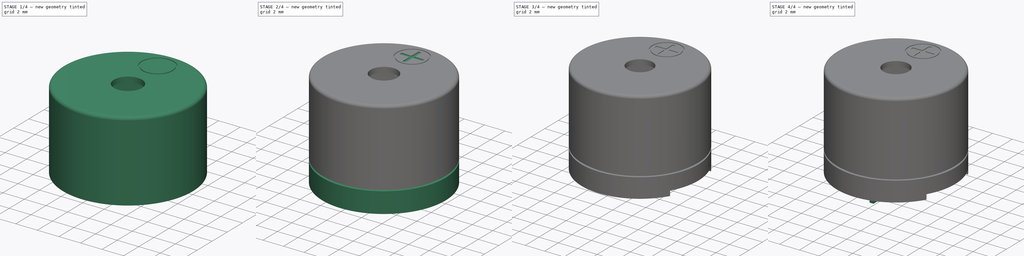
[diagram: build sequence overview — one tinted view per stage of 4, left to right]
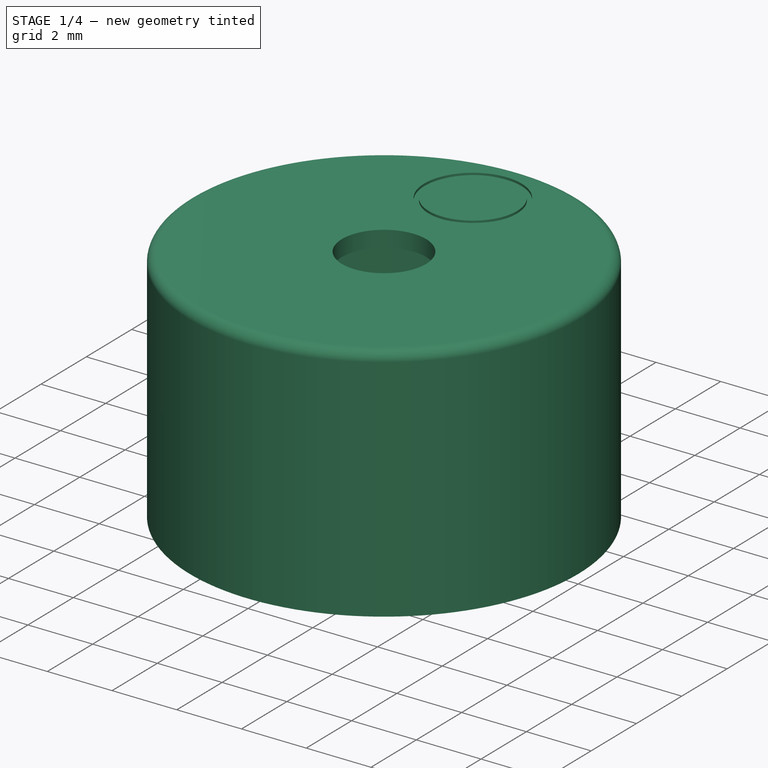
[diagram: stage 1 of 4 — iso view after this stage's code; geometry added in this stage tinted green]
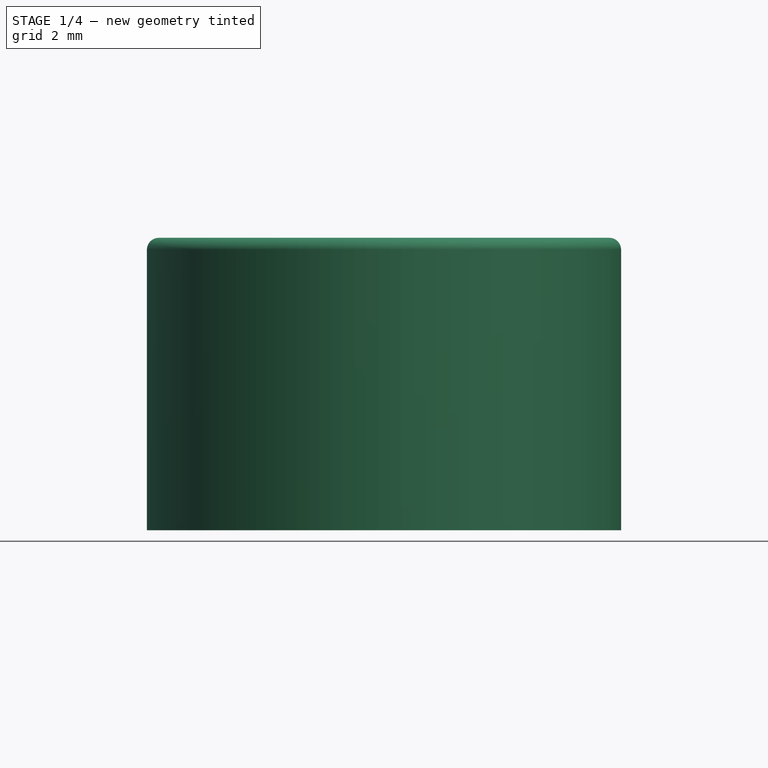
[diagram: stage 1 of 4 — front view after this stage's code; geometry added in this stage tinted green]
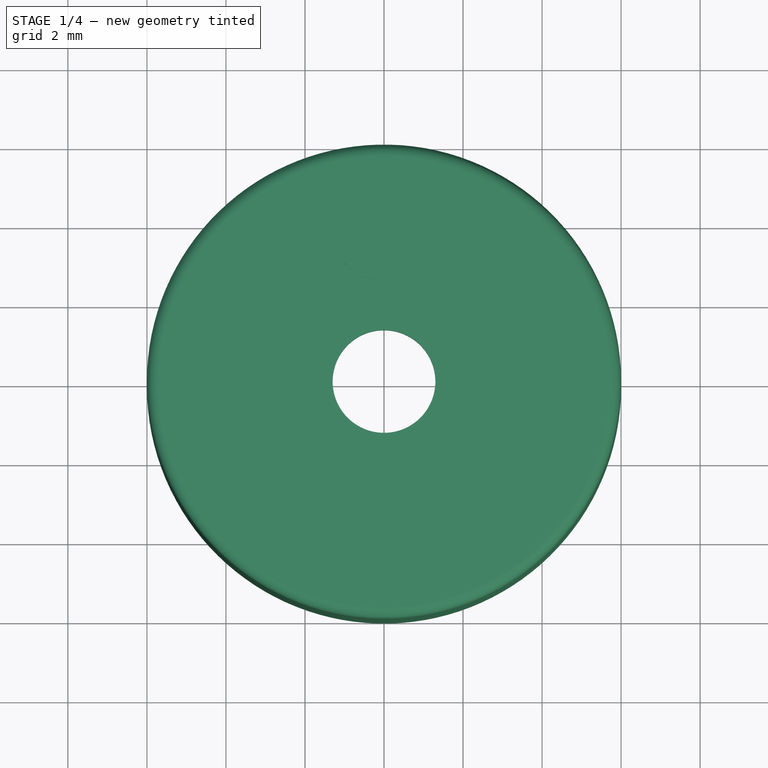
[diagram: stage 1 of 4 — top view after this stage's code; geometry added in this stage tinted green]
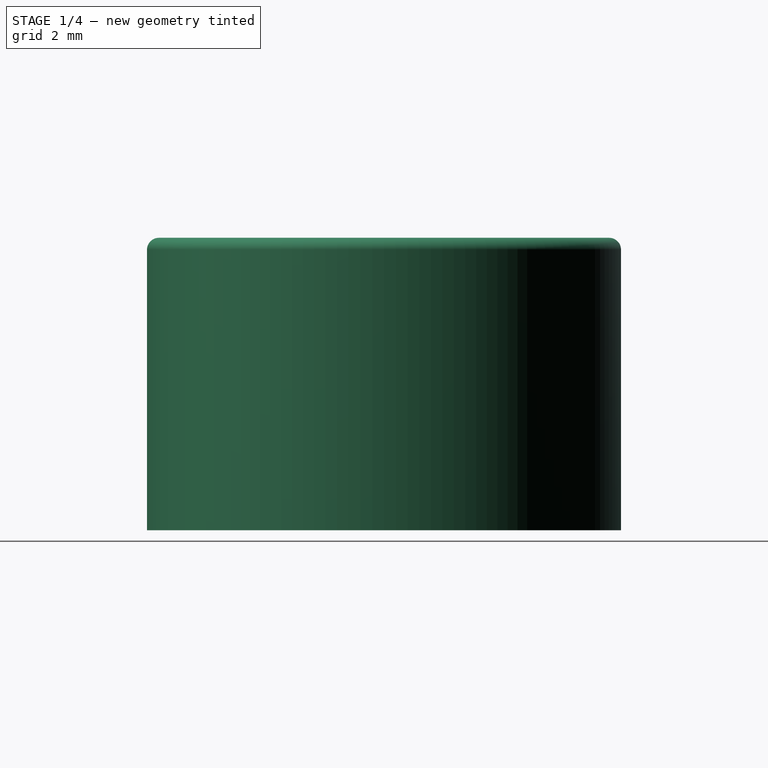
[diagram: stage 1 of 4 — right view after this stage's code; geometry added in this stage tinted green]
FCSTD DOCUMENT  (FreeCAD 0.14R3692 (Git))
Label: Buzzer
License: CC-BY 3.0
LicenseURL: http://creativecommons.org/licenses/by/3.0/
objects: Sketcher::SketchObject×4, Part::Box×3, Part::Cut×3, PartDesign::Revolution×2, Part::MultiFuse×2, PartDesign::Pad×2, Part::Fillet×1, Part::Cylinder×1
note: 22 computed .brp shape members not serialized (recipe doc carries the construction recipe); baked Part::Feature solids carry a one-line shape summary decoded from their .brp

FEATURE [Sketcher::SketchObject] Sketch001
  Placement = pos=(0,0,0) rot=(1,0,0;1.5708rad)
  sketch-geometry (8):
    g0: LineSegment StartX=1.3 StartY=9.57124 StartZ=0 EndX=6 EndY=9.57124 EndZ=0
    g1: LineSegment StartX=6 StartY=9.57124 StartZ=0 EndX=6 EndY=2.17124 EndZ=0
    g2: LineSegment StartX=6 StartY=2.17124 StartZ=0 EndX=5.75 EndY=2.17124 EndZ=0
    g3: LineSegment StartX=5.75 StartY=2.17124 StartZ=0 EndX=5.75 EndY=2.57124 EndZ=0
    g4: LineSegment StartX=5.75 StartY=2.57124 StartZ=0 EndX=5.5 EndY=2.57124 EndZ=0
    g5: LineSegment StartX=5.5 StartY=2.57124 StartZ=0 EndX=5.5 EndY=9.07124 EndZ=0
    g6: LineSegment StartX=5.5 StartY=9.07124 StartZ=0 EndX=1.3 EndY=9.07124 EndZ=0
    g7: LineSegment StartX=1.3 StartY=9.07124 StartZ=0 EndX=1.3 EndY=9.57124 EndZ=0
  constraints (24):
    c: Horizontal(g0)
    c: Coincident(g0,g1)
    c: Vertical(g1)
    c: Coincident(g1,g2)
    c: Coincident(g2,g3)
    c: Vertical(g3)
    c: Coincident(g3,g4)
    c: Horizontal(g4)
    c: Coincident(g4,g5)
    c: Vertical(g5)
    c: Coincident(g5,g6)
    c: Horizontal(g6)
    c: Coincident(g6,g7)
    c: Coincident(g7,g0)
    c: DistanceY(g1) = -7.4
    c: Horizontal(g2)
    c: Vertical(g7)
    c: DistanceY(g3) = 0.4
    c: DistanceY(g7) = 0.5
    c: DistanceX(g0,g5) = -0.5
    c: DistanceX(g2,g1) = 0.25
    c: DistanceX(g-1,g1) = 6
    c: DistanceX(g-1,g0) = 1.3
    c: DistanceY(g-1,g1) = 2.17124
FEATURE [PartDesign::Revolution] Revolution001
  Angle = 360
  Axis = (0,0,1)
  Base = (0,0,0)
  Placement = pos=(0,0,0) rot=(1,0,0;1.5708rad)
  ReferenceAxis = -> Sketch001 [V_Axis]
  Reversed = true
  Sketch = -> Sketch001
FEATURE [Part::Fillet] Fillet  label="AroSuperior_b"
  Base = -> Revolution001
  Edges = 1 edges r=0.3: [Edge2]
FEATURE [Sketcher::SketchObject] Sketch002
  Placement = pos=(0,0,9.5) rot=(0,0,1;0rad)
  sketch-geometry (2):
    g0: Circle CenterX=0 CenterY=3.92336 CenterZ=0 NormalX=0 NormalY=0 NormalZ=1 Radius=1.5
    g1: Circle CenterX=0 CenterY=3.92336 CenterZ=0 NormalX=0 NormalY=0 NormalZ=1 Radius=1.36584
  constraints (3):
    c: Radius(g0) = 1.5
    c: PointOnObject(g0,g-2)
    c: Coincident(g1,g0)
FEATURE [PartDesign::Pad] Pad
  Length = 5
  Length2 = 100
  Placement = pos=(0,0,9.5) rot=(0,0,1;0rad)
  Sketch = -> Sketch002
  Type = 0
FEATURE [Part::Cut] Cut001
  Base = -> Fillet
  Tool = -> Pad
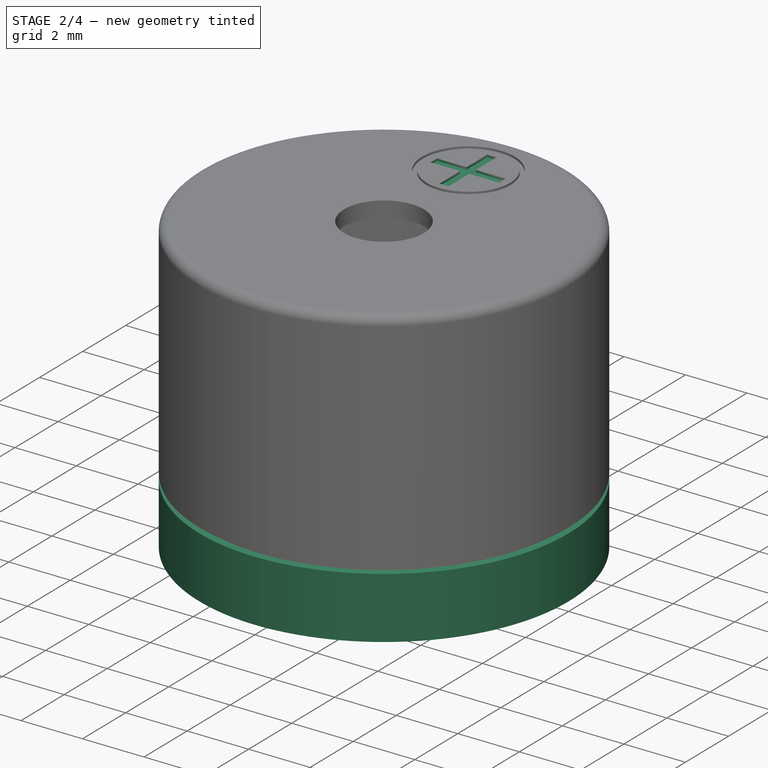
[diagram: stage 2 of 4 — iso view after this stage's code; geometry added in this stage tinted green]
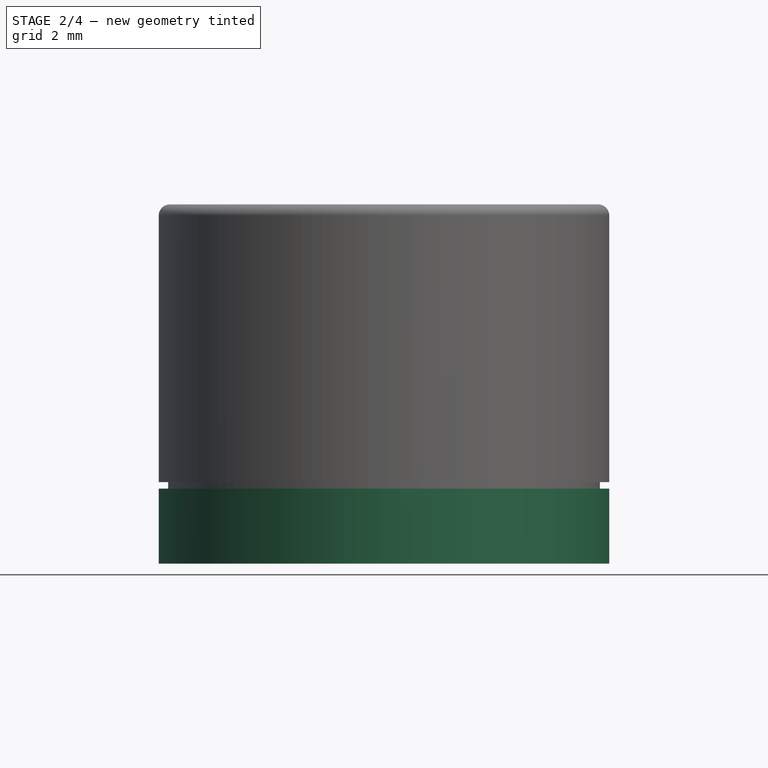
[diagram: stage 2 of 4 — front view after this stage's code; geometry added in this stage tinted green]
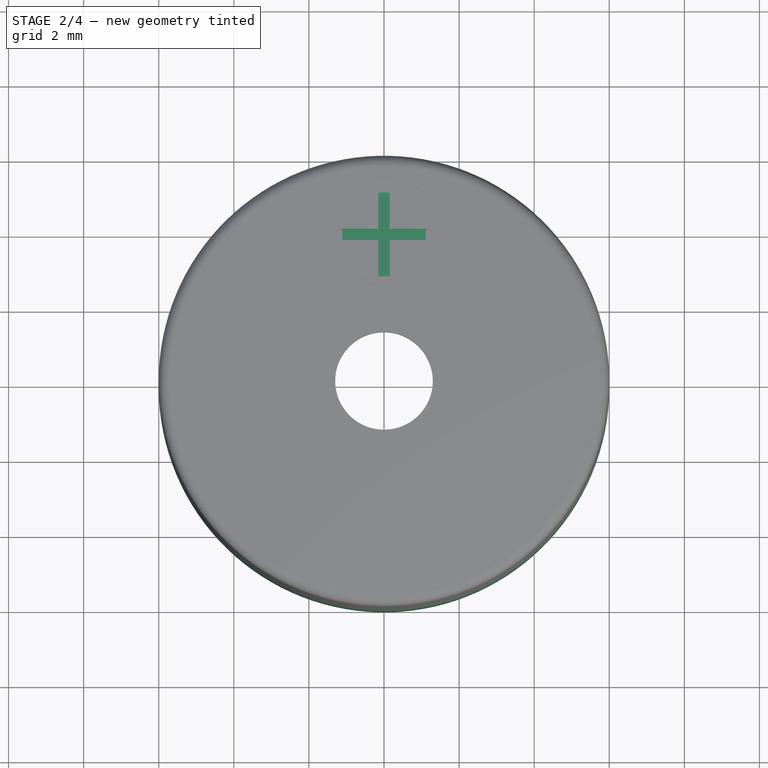
[diagram: stage 2 of 4 — top view after this stage's code; geometry added in this stage tinted green]
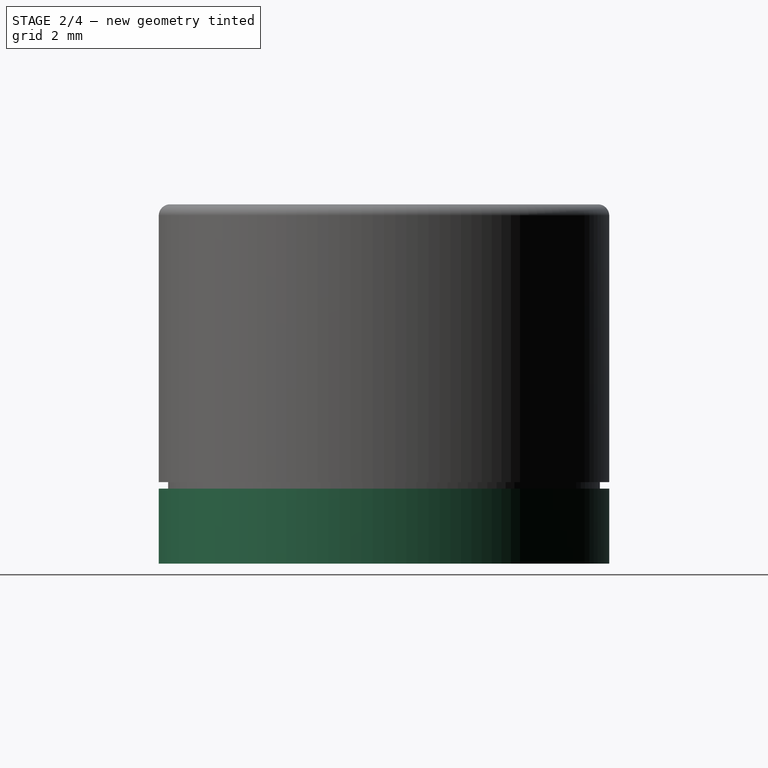
[diagram: stage 2 of 4 — right view after this stage's code; geometry added in this stage tinted green]
FEATURE [Sketcher::SketchObject] Sketch
  Placement = pos=(0,0,0) rot=(1,0,0;1.5708rad)
  sketch-geometry (6):
    g0: LineSegment StartX=5.5 StartY=2.5 StartZ=0 EndX=5.5 EndY=0 EndZ=0
    g1: LineSegment StartX=5.5 StartY=0 StartZ=0 EndX=6 EndY=0 EndZ=0
    g2: LineSegment StartX=6 StartY=0 StartZ=0 EndX=6 EndY=2 EndZ=0
    g3: LineSegment StartX=6 StartY=2 StartZ=0 EndX=5.75 EndY=2 EndZ=0
    g4: LineSegment StartX=5.75 StartY=2 StartZ=0 EndX=5.75 EndY=2.5 EndZ=0
    g5: LineSegment StartX=5.75 StartY=2.5 StartZ=0 EndX=5.5 EndY=2.5 EndZ=0
  constraints (18):
    c: PointOnObject(g0,g-1)
    c: Vertical(g0)
    c: Coincident(g0,g1)
    c: PointOnObject(g1,g-1)
    c: Coincident(g1,g2)
    c: Vertical(g2)
    c: Coincident(g2,g3)
    c: Coincident(g3,g4)
    c: Vertical(g4)
    c: Coincident(g4,g5)
    c: Coincident(g5,g0)
    c: Horizontal(g5)
    c: Horizontal(g3)
    c: DistanceX(g1) = 0.5
    c: DistanceY(g0,g1) = -2.5
    c: DistanceY(g2,g1) = -2
    c: DistanceX(g5) = -0.25
    c: DistanceX(g-1,g0) = 5.5
FEATURE [PartDesign::Revolution] Revolution
  Angle = 360
  Axis = (0,0,1)
  Base = (0,0,0)
  Placement = pos=(0,0,0) rot=(1,0,0;1.5708rad)
  ReferenceAxis = -> Sketch [V_Axis]
  Reversed = true
  Sketch = -> Sketch
FEATURE [Sketcher::SketchObject] Sketch003
  Placement = pos=(0,0,9.5) rot=(0,0,1;0rad)
  sketch-geometry (12):
    g0: LineSegment StartX=-0.15 StartY=5.01496 StartZ=0 EndX=0.15 EndY=5.01496 EndZ=0
    g1: LineSegment StartX=0.15 StartY=5.01496 StartZ=0 EndX=0.15 EndY=4.05141 EndZ=0
    g2: LineSegment StartX=0.15 StartY=4.05141 StartZ=0 EndX=1.11355 EndY=4.05141 EndZ=0
    g3: LineSegment StartX=1.11355 StartY=4.05141 StartZ=0 EndX=1.11355 EndY=3.75141 EndZ=0
    g4: LineSegment StartX=1.11355 StartY=3.75141 StartZ=0 EndX=0.15 EndY=3.75141 EndZ=0
    g5: LineSegment StartX=0.15 StartY=3.75141 StartZ=0 EndX=0.15 EndY=2.78787 EndZ=0
    g6: LineSegment StartX=0.15 StartY=2.78787 StartZ=0 EndX=-0.15 EndY=2.78787 EndZ=0
    g7: LineSegment StartX=-0.15 StartY=2.78787 StartZ=0 EndX=-0.15 EndY=3.75141 EndZ=0
    g8: LineSegment StartX=-0.15 StartY=3.75141 StartZ=0 EndX=-1.11355 EndY=3.75141 EndZ=0
    g9: LineSegment StartX=-1.11355 StartY=3.75141 StartZ=0 EndX=-1.11355 EndY=4.05141 EndZ=0
    g10: LineSegment StartX=-1.11355 StartY=4.05141 StartZ=0 EndX=-0.15 EndY=4.05141 EndZ=0
    g11: LineSegment StartX=-0.15 StartY=4.05141 StartZ=0 EndX=-0.15 EndY=5.01496 EndZ=0
  constraints (36):
    c: Coincident(g0,g1)
    c: Coincident(g1,g2)
    c: Coincident(g2,g3)
    c: Coincident(g3,g4)
    c: Coincident(g4,g5)
    c: Coincident(g5,g6)
    c: Coincident(g6,g7)
    c: Coincident(g7,g8)
    c: Coincident(g8,g9)
    c: Coincident(g9,g10)
    c: Coincident(g10,g11)
    c: Coincident(g11,g0)
    c: Vertical(g11)
    c: Vertical(g1)
    c: Vertical(g7)
    c: Vertical(g5)
    c: Vertical(g9)
    c: Vertical(g3)
    c: Horizontal(g0)
    c: Horizontal(g10)
    c: Horizontal(g2)
    c: Horizontal(g8)
    c: Horizontal(g4)
    c: Horizontal(g6)
    c: Equal(g11,g1)
    c: Equal(g1,g2)
    c: Equal(g2,g4)
    c: Equal(g4,g5)
    c: Equal(g5,g7)
    c: Equal(g7,g8)
    c: Equal(g8,g10)
    c: Equal(g0,g3)
    c: Equal(g3,g6)
    c: Equal(g6,g9)
    c: DistanceX(g0) = 0.3
    c: Symmetric(g1,g10,g-2)
FEATURE [PartDesign::Pad] Pad001
  Length = 5
  Length2 = 100
  Placement = pos=(0,0,9.5) rot=(0,0,1;0rad)
  Sketch = -> Sketch003
  Type = 0
FEATURE [Part::Cut] Cut002  label="Tapa"
  Base = -> Cut001
  Tool = -> Pad001
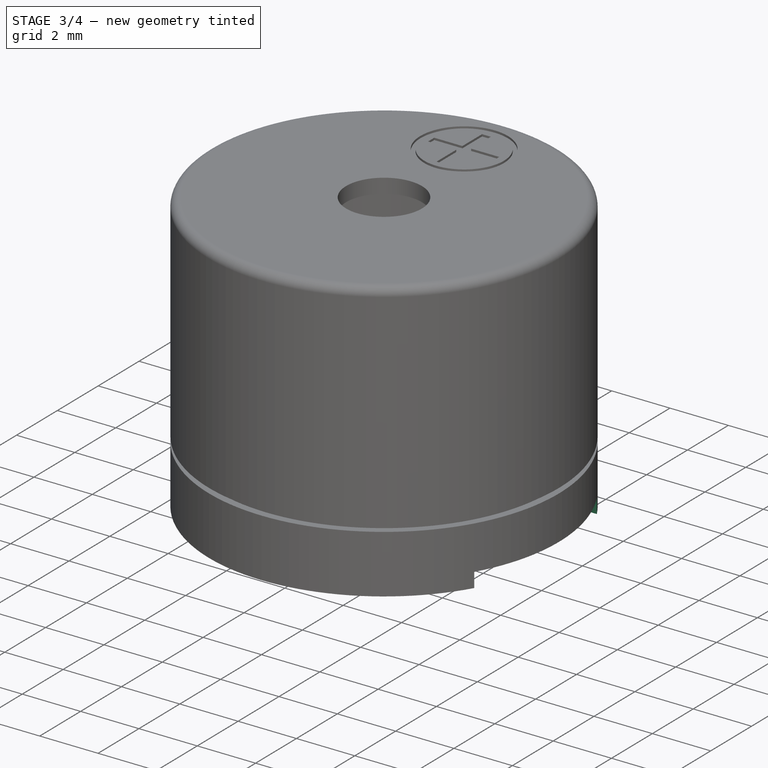
[diagram: stage 3 of 4 — iso view after this stage's code; geometry added in this stage tinted green]
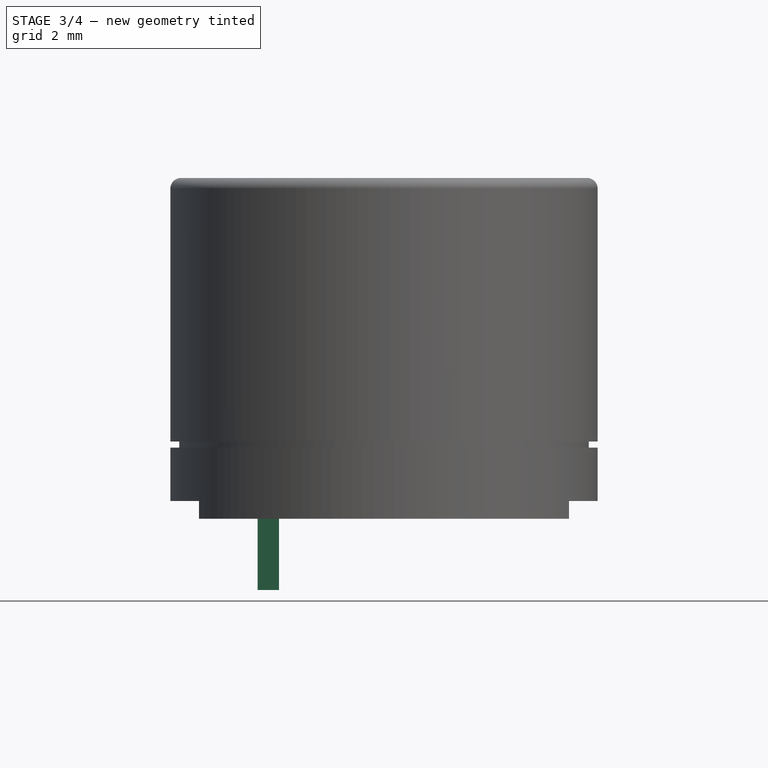
[diagram: stage 3 of 4 — front view after this stage's code; geometry added in this stage tinted green]
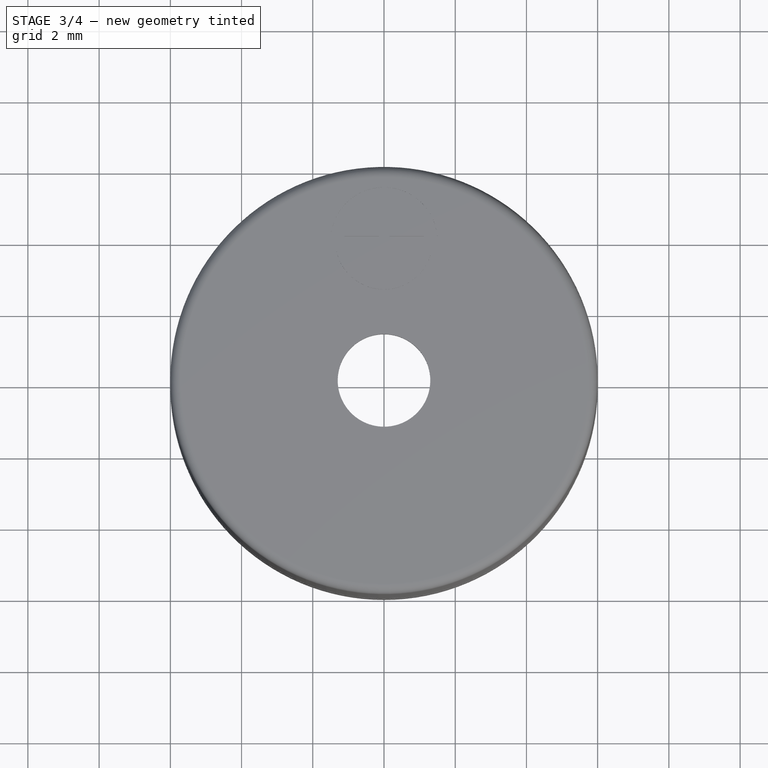
[diagram: stage 3 of 4 — top view after this stage's code; geometry added in this stage tinted green]
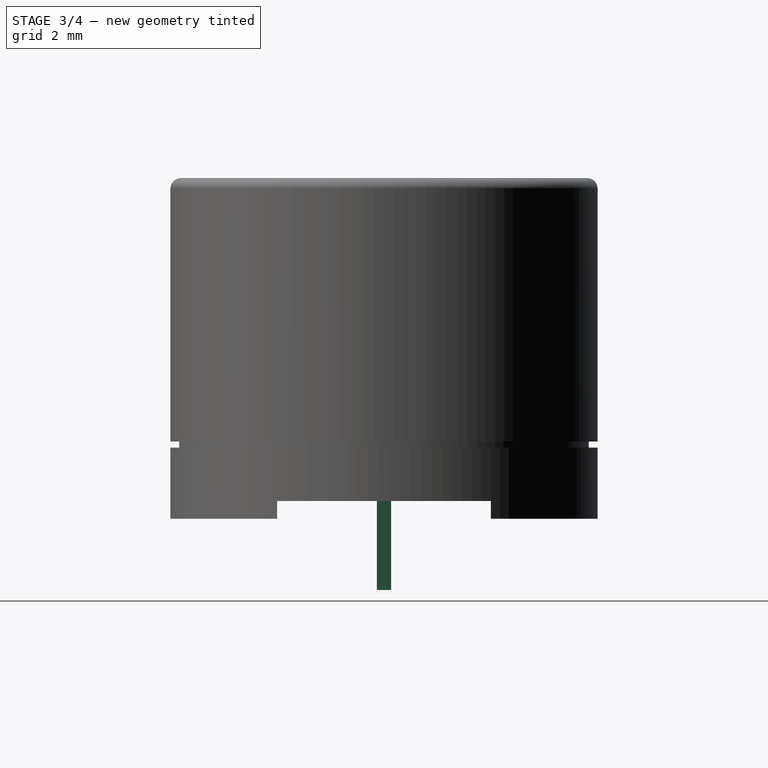
[diagram: stage 3 of 4 — right view after this stage's code; geometry added in this stage tinted green]
FEATURE [Part::Box] Box  label="Cubo"
  Height = 0.5
  Length = 6
  Placement = pos=(-3,-7,0) rot=(0,0,1;0rad)
  Width = 15
FEATURE [Part::Box] Box002  label="Cubo002"
  Height = 2.5
  Length = 0.6
  Placement = pos=(-3.55,-0.2,-2) rot=(0,0,1;0rad)
  Width = 0.4
FEATURE [Part::Cut] Cut  label="AroInferior"
  Base = -> Revolution
  Placement = pos=(0,0,0) rot=(0,0,1;1.5708rad)
  Tool = -> Box
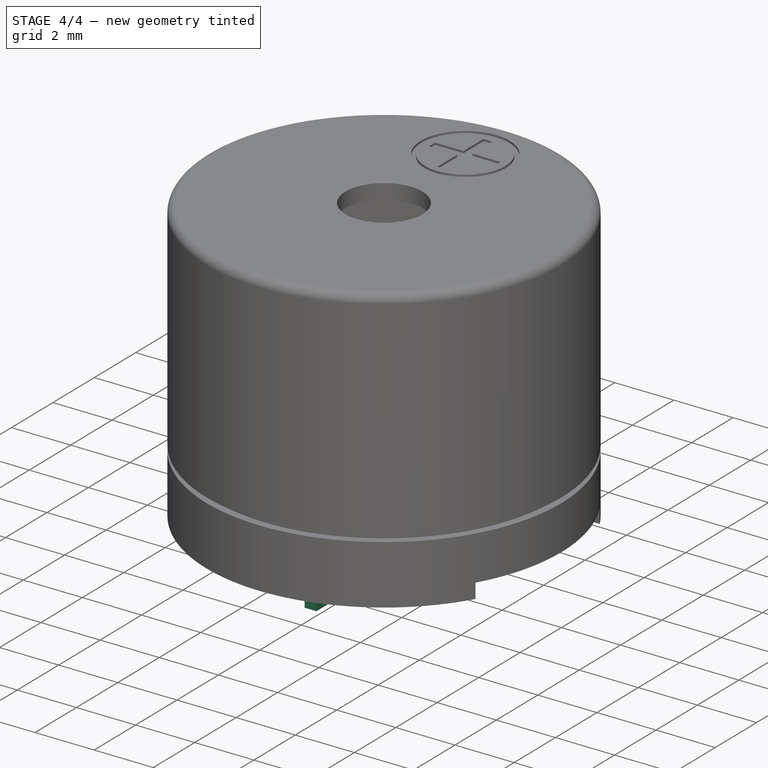
[diagram: stage 4 of 4 — iso view after this stage's code; geometry added in this stage tinted green]
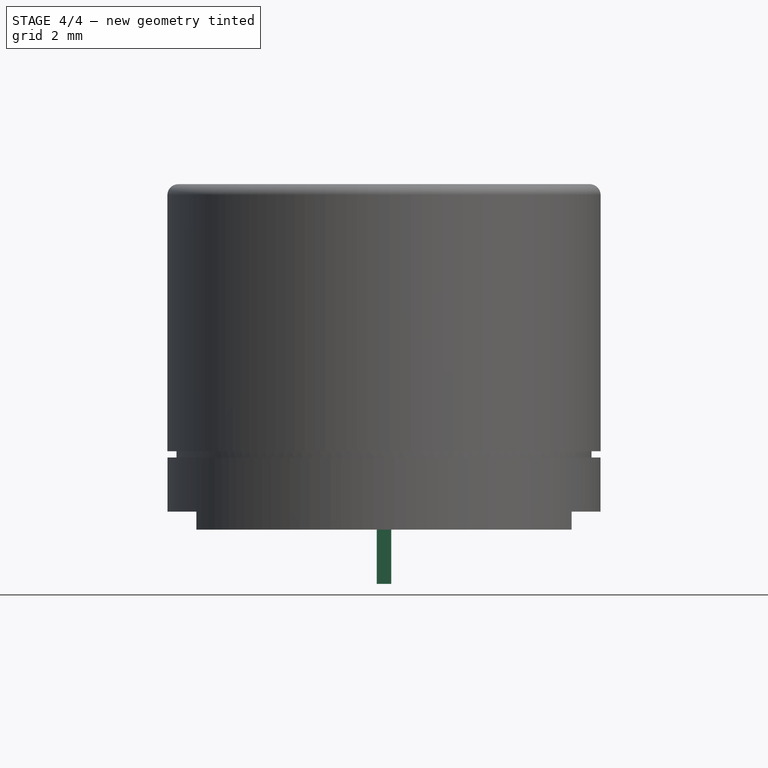
[diagram: stage 4 of 4 — front view after this stage's code; geometry added in this stage tinted green]
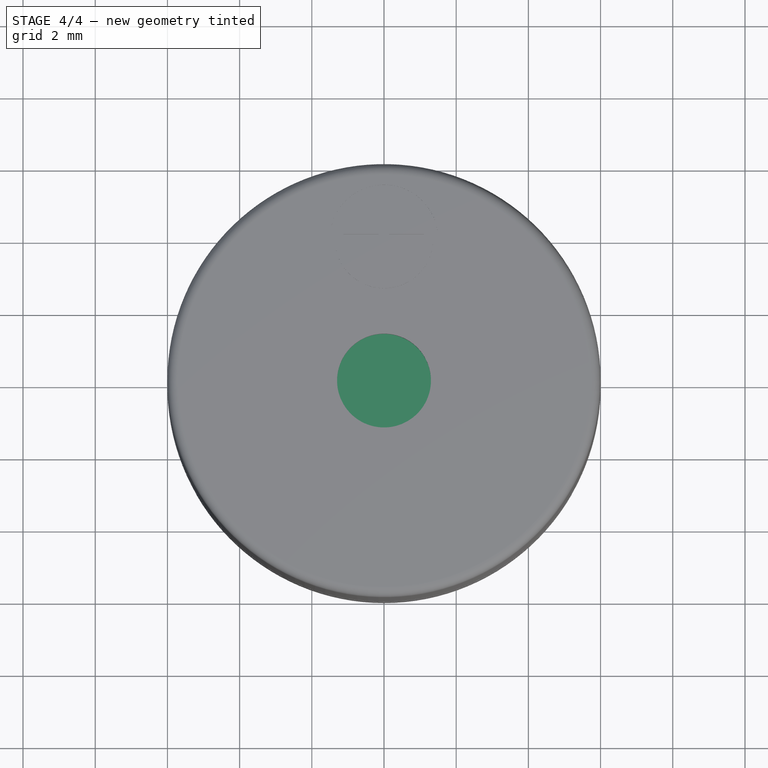
[diagram: stage 4 of 4 — top view after this stage's code; geometry added in this stage tinted green]
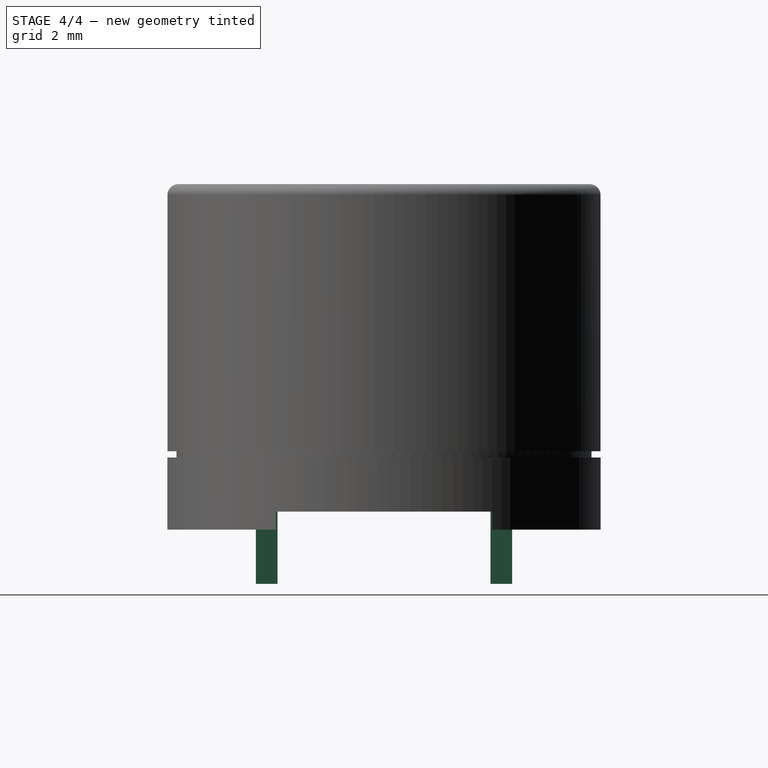
[diagram: stage 4 of 4 — right view after this stage's code; geometry added in this stage tinted green]
FEATURE [Part::Cylinder] Cylinder005  label="Cilindro002"
  Angle = 360
  Height = 2
  Radius = 5.5
FEATURE [Part::Box] Box001  label="Cubo001"
  Height = 2.5
  Length = 0.6
  Placement = pos=(2.95,-0.2,-2) rot=(0,0,1;0rad)
  Width = 0.4
FEATURE [Part::MultiFuse] Fusion  label="Interior"
  Placement = pos=(0,0,0.5) rot=(0,0,1;1.5708rad)
  Shapes = -> [Cylinder005,Box001,Box002]
FEATURE [Part::MultiFuse] Fusion001  label="Buzzer"
  Shapes = -> [Cut002,Fusion,Cut]
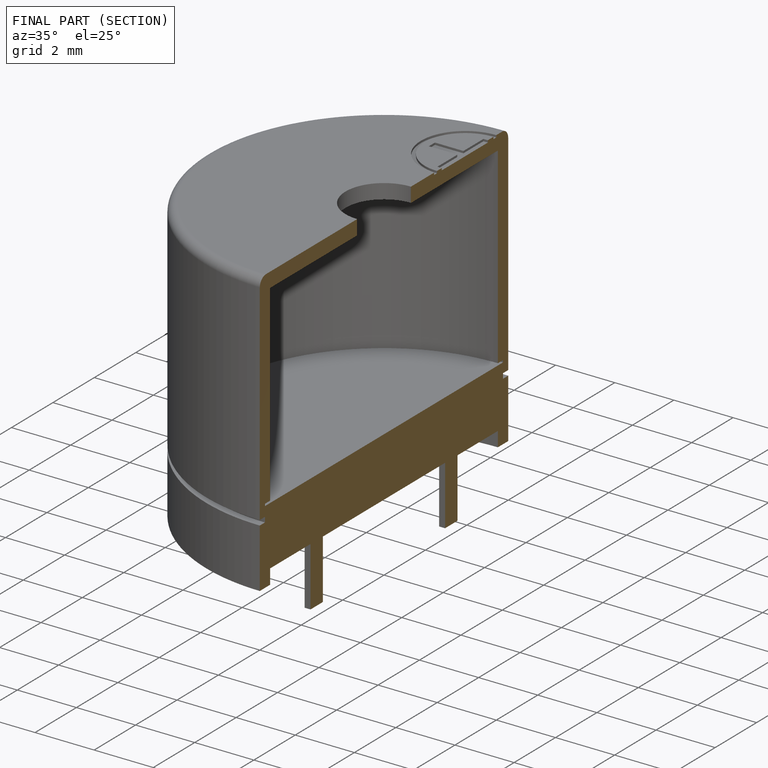
[diagram: finished part — half-section view (interior)]
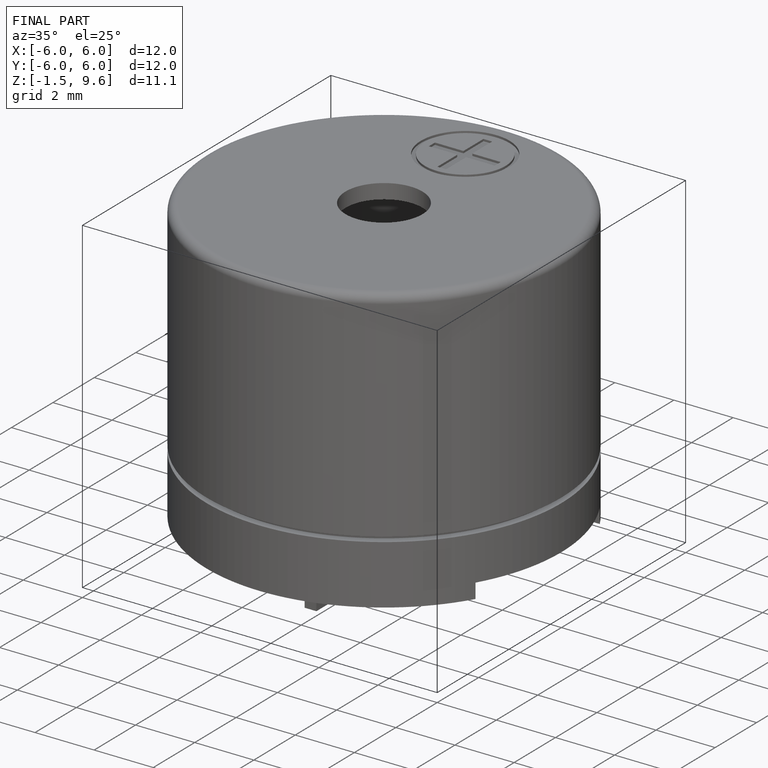
[diagram: finished part — iso view with bounding-box wireframe]
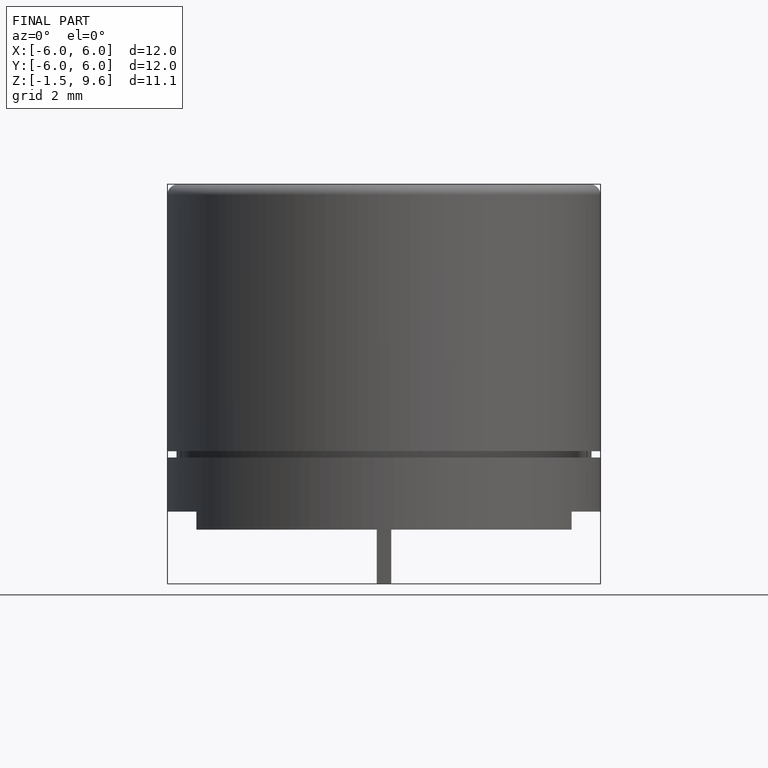
[diagram: finished part — front view with bounding-box wireframe]
